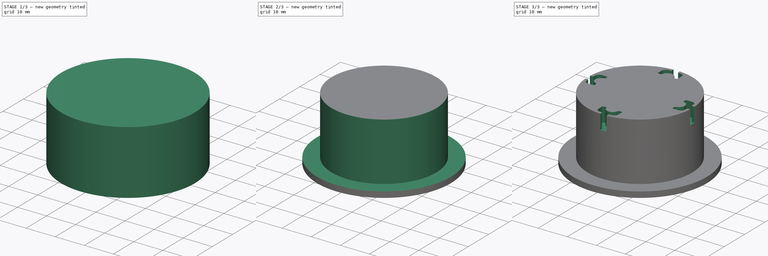
[diagram: build sequence overview — one tinted view per stage of 3, left to right]
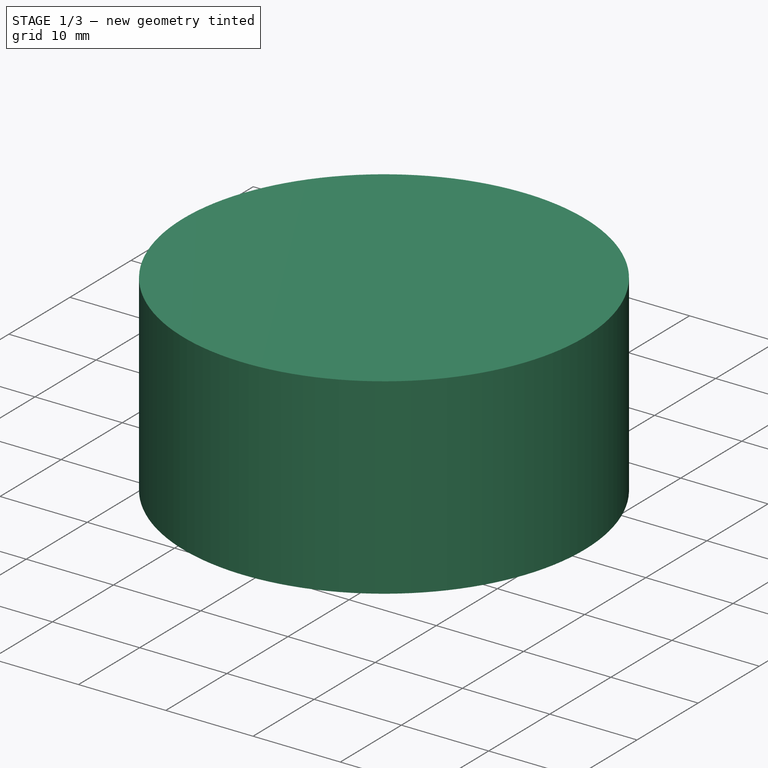
[diagram: stage 1 of 3 — iso view after this stage's code; geometry added in this stage tinted green]
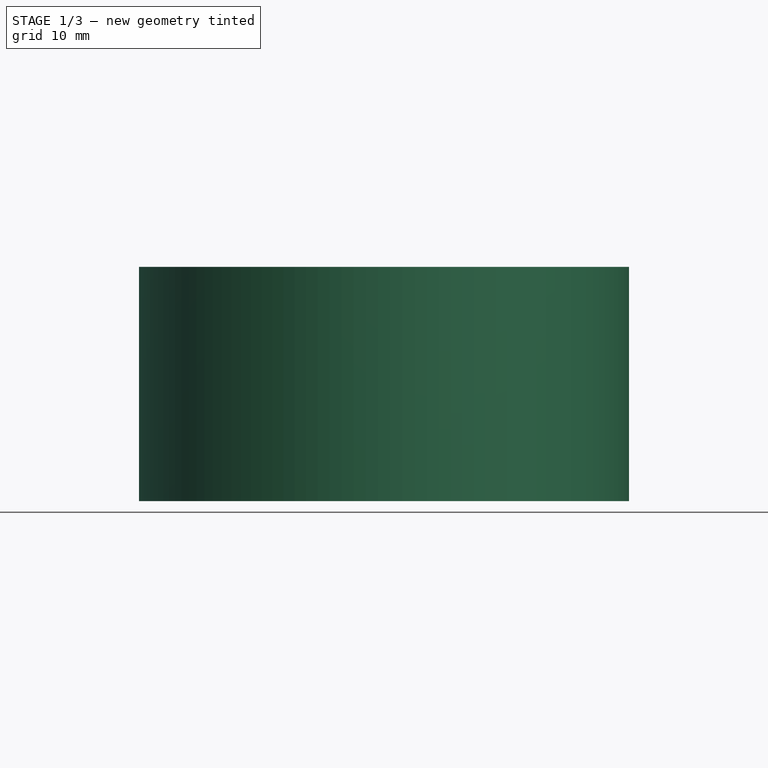
[diagram: stage 1 of 3 — front view after this stage's code; geometry added in this stage tinted green]
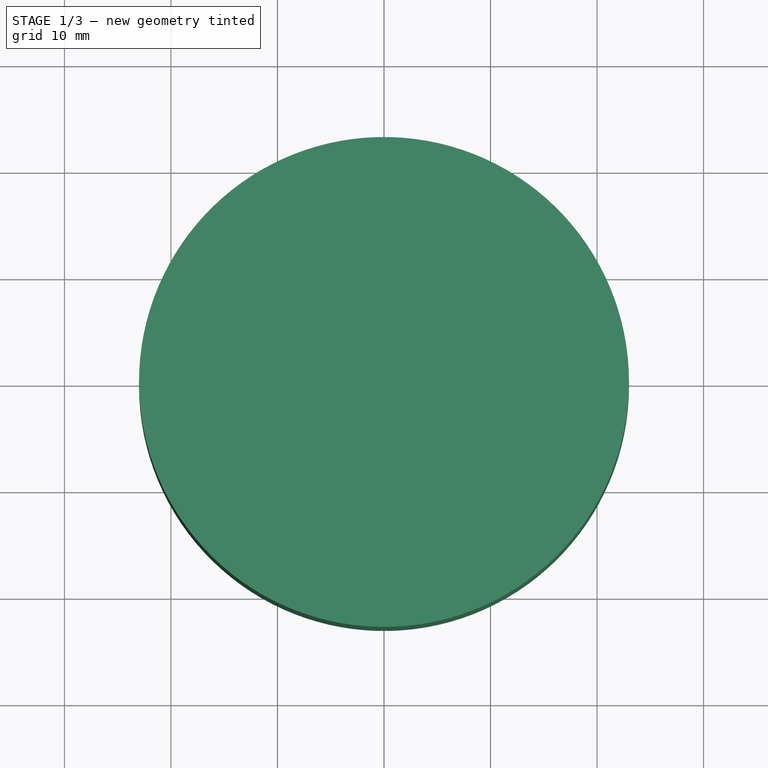
[diagram: stage 1 of 3 — top view after this stage's code; geometry added in this stage tinted green]
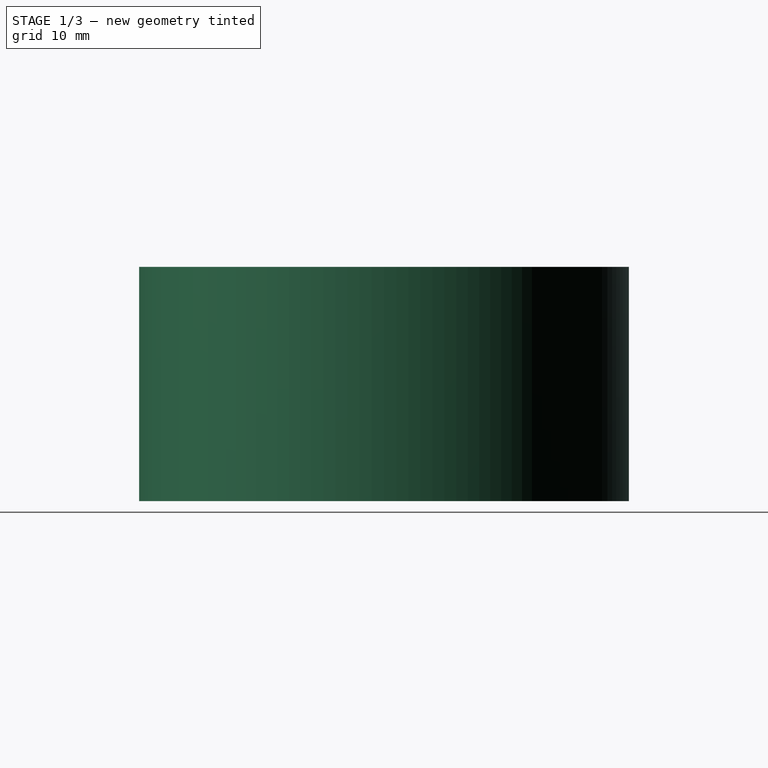
[diagram: stage 1 of 3 — right view after this stage's code; geometry added in this stage tinted green]
FCSTD DOCUMENT  (FreeCAD 1.0R39109 (Git))
Label: Soporte
License: All rights reserved
LicenseURL: http://en.wikipedia.org/wiki/All_rights_reserved
objects: Sketcher::SketchObject×4, PartDesign::Pocket×4, PartDesign::Pad×1, PartDesign::Body×1
note: 24 computed .brp shape members not serialized (recipe doc carries the construction recipe); baked Part::Feature solids carry a one-line shape summary decoded from their .brp

FEATURE [Sketcher::SketchObject] Sketch
  ArcFitTolerance = 1e-06
  AttachmentSupport = -> [XY_Plane]
  FullyConstrained = true
  MakeInternals = false
  MapMode = 5
  sketch-geometry (1):
    g0: Circle CenterX=0 CenterY=0 CenterZ=0 NormalX=0 NormalY=0 NormalZ=1 AngleXU=0 Radius=23
  constraints (2):
    c: Diameter(g0) = 46
    c: Coincident(g0,g-1)
FEATURE [PartDesign::Pad] Pad
  Direction = (0,0,1)
  Length = 22
  Length2 = 10
  Profile = -> Sketch
  ReferenceAxis = -> Sketch [N_Axis]
  Suppressed = false
  Type = 0
FEATURE [Sketcher::SketchObject] Sketch003
  ArcFitTolerance = 1e-06
  FullyConstrained = true
  MakeInternals = false
  MapMode = 5
  Placement = pos=(0,0,0) rot=(1,0,0;3.14159rad)
  sketch-geometry (1):
    g0: Circle CenterX=0 CenterY=0 CenterZ=0 NormalX=0 NormalY=0 NormalZ=1 AngleXU=0 Radius=11.5
  constraints (2):
    c: Diameter(g0) = 23
    c: Coincident(g0,g-1)
FEATURE [PartDesign::Pocket] Pocket001
  BaseFeature = -> Pad
  Direction = (0,0,1)
  Length = 21
  Length2 = 5
  Profile = -> Sketch003
  ReferenceAxis = -> Sketch003 [N_Axis]
  Suppressed = false
  Type = 0
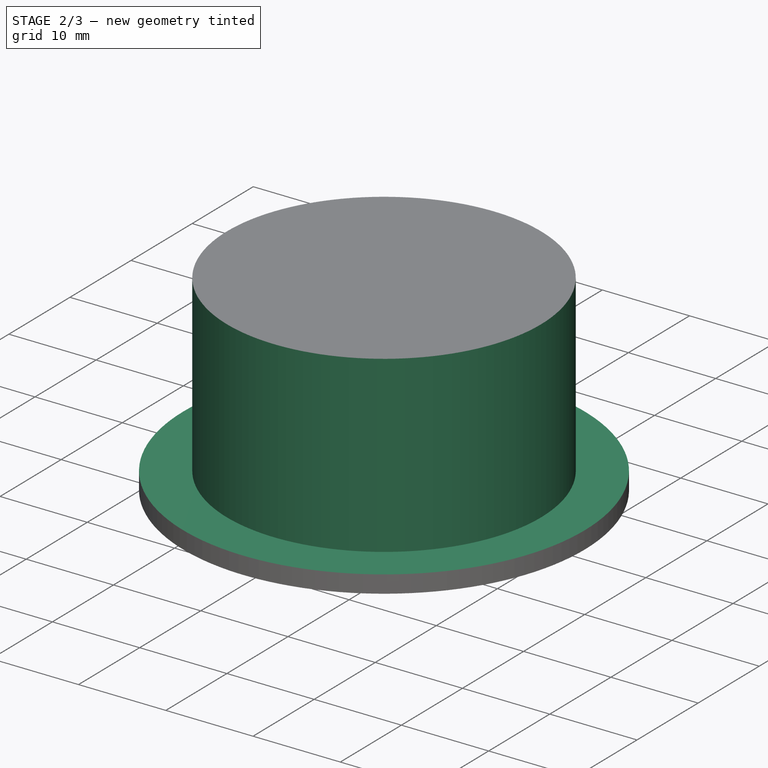
[diagram: stage 2 of 3 — iso view after this stage's code; geometry added in this stage tinted green]
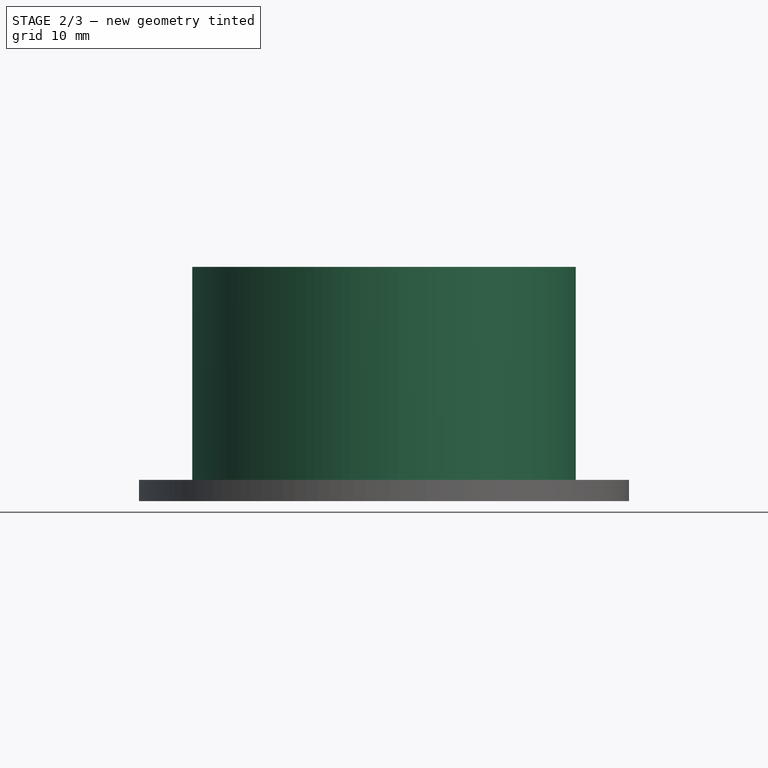
[diagram: stage 2 of 3 — front view after this stage's code; geometry added in this stage tinted green]
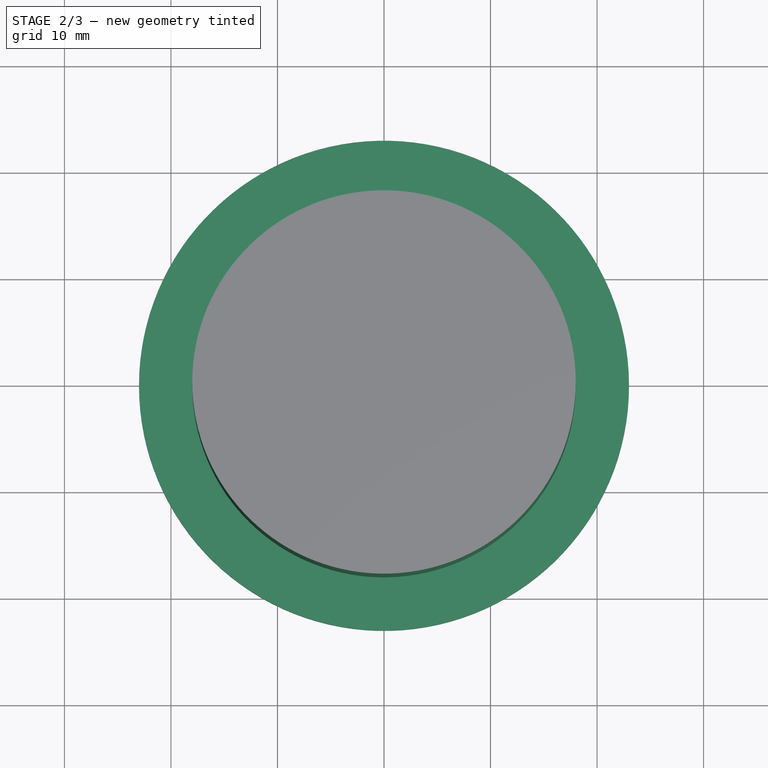
[diagram: stage 2 of 3 — top view after this stage's code; geometry added in this stage tinted green]
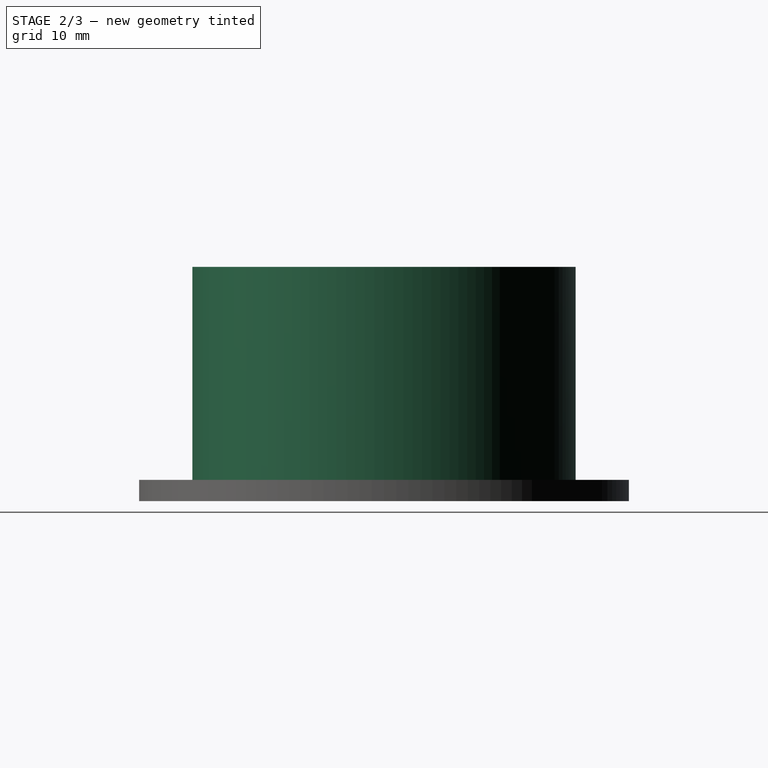
[diagram: stage 2 of 3 — right view after this stage's code; geometry added in this stage tinted green]
FEATURE [Sketcher::SketchObject] Sketch004
  ArcFitTolerance = 1e-06
  AttachmentSupport = -> [Pocket001]
  ExternalGeometry = -> [Pocket001]
  FullyConstrained = false
  MakeInternals = false
  MapMode = 5
  Placement = pos=(0,0,22) rot=(0,0,1;0rad)
  sketch-geometry (3):
    g0: Circle CenterX=0 CenterY=0 CenterZ=0 NormalX=0 NormalY=0 NormalZ=1 AngleXU=0 Radius=23
    g1: LineSegment [constr] StartX=0 StartY=0 StartZ=0 EndX=0 EndY=18 EndZ=0
    g2: Circle CenterX=0 CenterY=0 CenterZ=0 NormalX=0 NormalY=0 NormalZ=1 AngleXU=0 Radius=18
  constraints (6):
    c: Coincident(g0,g-1)
    c: Distance(g1) = 18
    c: Coincident(g1,g0)
    c: PointOnObject(g1,g-2)
    c: Coincident(g2,g0)
    c: PointOnObject(g1,g2)
FEATURE [PartDesign::Pocket] Pocket
  BaseFeature = -> Pocket001
  Direction = (0,0,-1)
  Length = 20
  Length2 = 5
  Profile = -> Sketch004
  ReferenceAxis = -> Sketch004 [N_Axis]
  Suppressed = false
  Type = 0
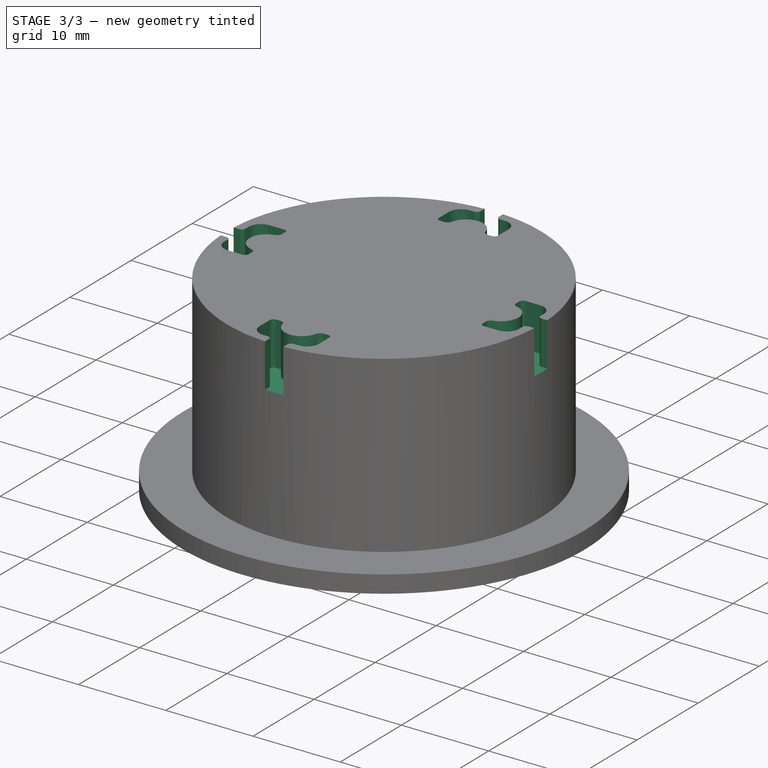
[diagram: stage 3 of 3 — iso view after this stage's code; geometry added in this stage tinted green]
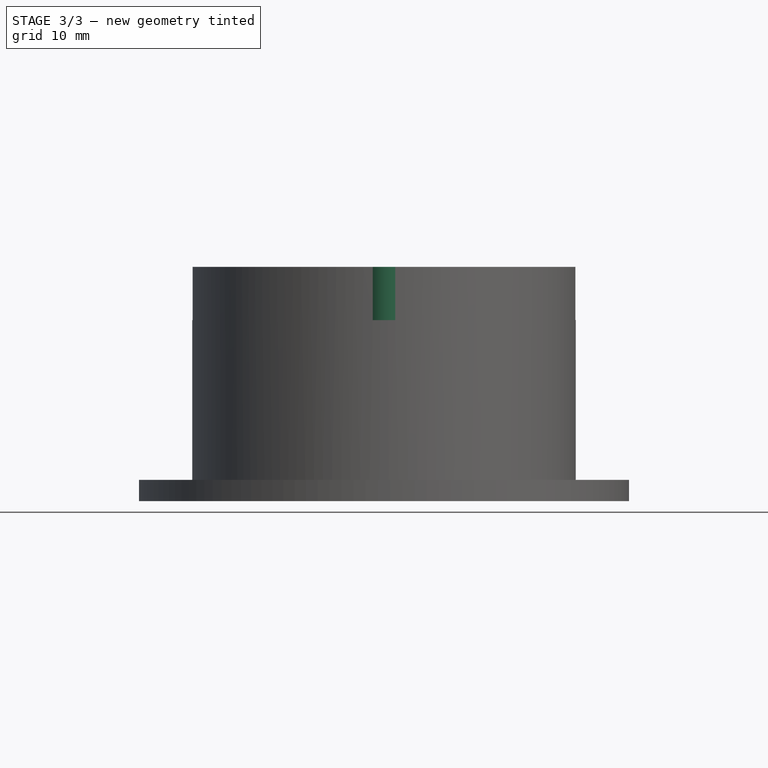
[diagram: stage 3 of 3 — front view after this stage's code; geometry added in this stage tinted green]
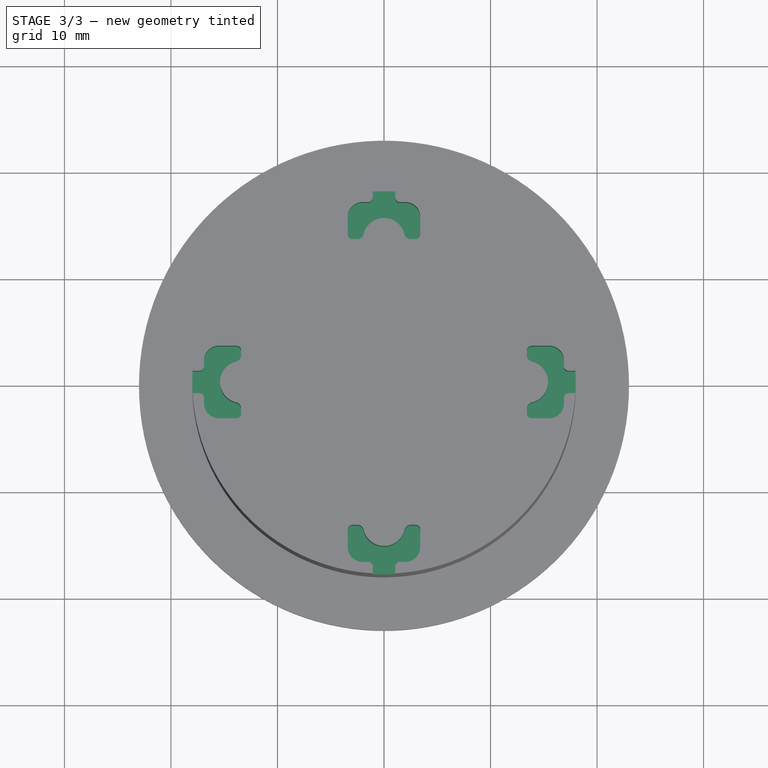
[diagram: stage 3 of 3 — top view after this stage's code; geometry added in this stage tinted green]
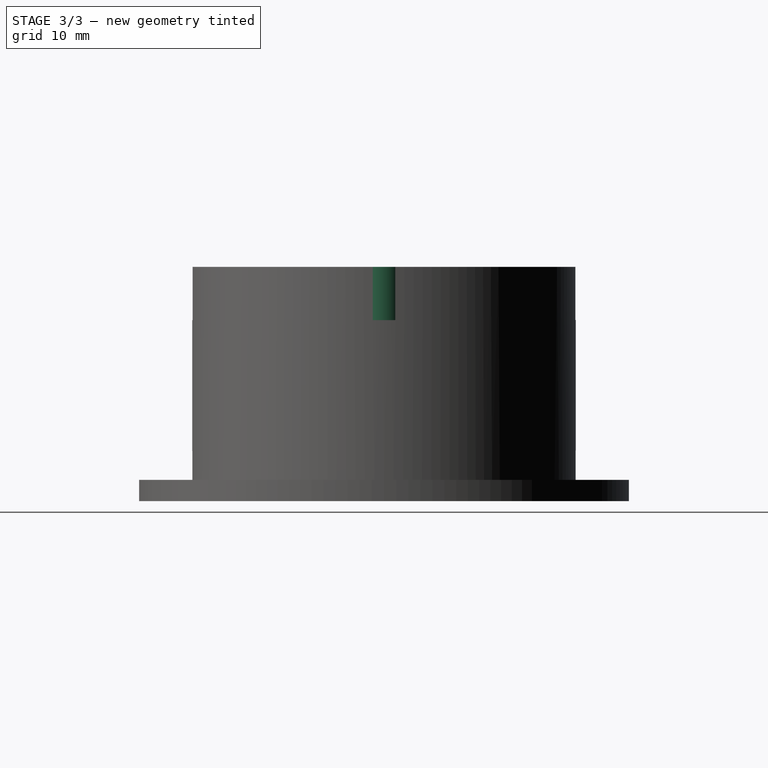
[diagram: stage 3 of 3 — right view after this stage's code; geometry added in this stage tinted green]
FEATURE [Sketcher::SketchObject] Sketch005
  ArcFitTolerance = 1e-06
  AttachmentSupport = -> [Pocket]
  FullyConstrained = false
  MakeInternals = false
  MapMode = 5
  Placement = pos=(0,0,22) rot=(0,0,1;0rad)
  sketch-geometry (93):
    g0: Circle [constr] CenterX=0 CenterY=0 CenterZ=0 NormalX=0 NormalY=0 NormalZ=1 AngleXU=0 Radius=12.5968
    g1: LineSegment StartX=-1.05652 StartY=18.7424 StartZ=0 EndX=-1.05652 EndY=17.3219 EndZ=0
    g2: LineSegment StartX=-1.4862 StartY=16.8922 StartZ=0 EndX=-2.01169 EndY=16.8922 EndZ=0
    g3: LineSegment StartX=-3.4072 StartY=15.4967 StartZ=0 EndX=-3.4072 EndY=13.857 EndZ=0
    g4: LineSegment StartX=-2.4972 StartY=13.4096 StartZ=0 EndX=-2.95974 EndY=13.4096 EndZ=0
    g5: ArcOfCircle CenterX=-2.01169 CenterY=15.4967 CenterZ=0 NormalX=0 NormalY=0 NormalZ=1 AngleXU=0 Radius=1.39551 StartAngle=1.5708 EndAngle=3.14159
    g6: GeomPoint [constr] X=-3.4072 Y=16.8922 Z=0
    g7: LineSegment StartX=-1.05652 StartY=18.7424 StartZ=0 EndX=0 EndY=18.7424 EndZ=0
    g8: ArcOfCircle CenterX=-2.49718 CenterY=14.004 CenterZ=0 NormalX=0 NormalY=0 NormalZ=1 AngleXU=0 Radius=0.594447 StartAngle=4.71237 EndAngle=6.04953
    g9: ArcOfCircle CenterX=-2.95973 CenterY=13.857 CenterZ=0 NormalX=0 NormalY=0 NormalZ=1 AngleXU=0 Radius=0.447476 StartAngle=3.14159 EndAngle=4.71237
    g10: GeomPoint [constr] X=-3.4072 Y=13.4096 Z=0
    g11: ArcOfCircle CenterX=-1.4862 CenterY=17.3219 CenterZ=0 NormalX=0 NormalY=0 NormalZ=1 AngleXU=0 Radius=0.429673 StartAngle=4.71239 EndAngle=6.28319
    g12: LineSegment StartX=1.05652 StartY=18.7424 StartZ=0 EndX=1.05652 EndY=17.3219 EndZ=0
    g13: LineSegment StartX=1.4862 StartY=16.8922 StartZ=0 EndX=2.01169 EndY=16.8922 EndZ=0
    g14: LineSegment StartX=3.4072 StartY=15.4967 StartZ=0 EndX=3.4072 EndY=13.857 EndZ=0
    g15: LineSegment StartX=2.4972 StartY=13.4096 StartZ=0 EndX=2.95974 EndY=13.4096 EndZ=0
    g16: ArcOfCircle CenterX=2.01169 CenterY=15.4967 CenterZ=0 NormalX=0 NormalY=0 NormalZ=1 AngleXU=0 Radius=1.39551 StartAngle=0 EndAngle=1.5708
    g17: GeomPoint [constr] X=3.4072 Y=16.8922 Z=0
    g18: LineSegment StartX=1.05652 StartY=18.7424 StartZ=0 EndX=0 EndY=18.7424 EndZ=0
    g19: ArcOfCircle CenterX=2.49718 CenterY=14.004 CenterZ=0 NormalX=0 NormalY=0 NormalZ=1 AngleXU=0 Radius=0.594447 StartAngle=3.37525 EndAngle=4.71241
    g20: ArcOfCircle CenterX=2.95973 CenterY=13.857 CenterZ=0 NormalX=0 NormalY=0 NormalZ=1 AngleXU=0 Radius=0.447476 StartAngle=4.71241 EndAngle=6.28319
    g21: GeomPoint [constr] X=3.4072 Y=13.4096 Z=0
    g22: ArcOfCircle CenterX=1.4862 CenterY=17.3219 CenterZ=0 NormalX=0 NormalY=0 NormalZ=1 AngleXU=0 Radius=0.429673 StartAngle=3.14159 EndAngle=4.71239
    g23: ArcOfCircle CenterX=1.4763e-07 CenterY=13.4288 CenterZ=0 NormalX=0 NormalY=0 NormalZ=1 AngleXU=0 Radius=1.96814 StartAngle=0.224186 EndAngle=2.91741
    g24: LineSegment StartX=18.7424 StartY=1.05652 StartZ=0 EndX=17.3219 EndY=1.05652 EndZ=0
    g25: LineSegment StartX=16.8922 StartY=1.4862 StartZ=0 EndX=16.8922 EndY=2.01169 EndZ=0
    g26: LineSegment StartX=15.4967 StartY=3.4072 StartZ=0 EndX=13.857 EndY=3.4072 EndZ=0
    g27: LineSegment StartX=13.4096 StartY=2.4972 StartZ=0 EndX=13.4096 EndY=2.95974 EndZ=0
    g28: ArcOfCircle CenterX=15.4967 CenterY=2.01169 CenterZ=0 NormalX=0 NormalY=0 NormalZ=1 AngleXU=0 Radius=1.39551 StartAngle=5.38e-14 EndAngle=1.5708
    g29: GeomPoint [constr] X=16.8922 Y=3.4072 Z=0
    g30: LineSegment StartX=18.7424 StartY=1.05652 StartZ=0 EndX=18.7424 EndY=0 EndZ=0
    g31: ArcOfCircle CenterX=14.004 CenterY=2.49718 CenterZ=0 NormalX=0 NormalY=0 NormalZ=1 AngleXU=0 Radius=0.594447 StartAngle=3.14157 EndAngle=4.47874
    g32: ArcOfCircle CenterX=13.857 CenterY=2.95973 CenterZ=0 NormalX=0 NormalY=0 NormalZ=1 AngleXU=0 Radius=0.447476 StartAngle=1.5708 EndAngle=3.14157
    g33: GeomPoint [constr] X=13.4096 Y=3.4072 Z=0
    g34: ArcOfCircle CenterX=17.3219 CenterY=1.4862 CenterZ=0 NormalX=0 NormalY=0 NormalZ=1 AngleXU=0 Radius=0.429673 StartAngle=3.14159 EndAngle=4.71239
    g35: LineSegment StartX=18.7424 StartY=-1.05652 StartZ=0 EndX=17.3219 EndY=-1.05652 EndZ=0
    g36: LineSegment StartX=16.8922 StartY=-1.4862 StartZ=0 EndX=16.8922 EndY=-2.01169 EndZ=0
    g37: LineSegment StartX=15.4967 StartY=-3.4072 StartZ=0 EndX=13.857 EndY=-3.4072 EndZ=0
    g38: LineSegment StartX=13.4096 StartY=-2.4972 StartZ=0 EndX=13.4096 EndY=-2.95974 EndZ=0
    g39: ArcOfCircle CenterX=15.4967 CenterY=-2.01169 CenterZ=0 NormalX=0 NormalY=0 NormalZ=1 AngleXU=0 Radius=1.39551 StartAngle=4.71239 EndAngle=6.28319
    g40: GeomPoint [constr] X=16.8922 Y=-3.4072 Z=0
    g41: LineSegment StartX=18.7424 StartY=-1.05652 StartZ=0 EndX=18.7424 EndY=0 EndZ=0
    g42: ArcOfCircle CenterX=14.004 CenterY=-2.49718 CenterZ=0 NormalX=0 NormalY=0 NormalZ=1 AngleXU=0 Radius=0.594447 StartAngle=1.80445 EndAngle=3.14162
    g43: ArcOfCircle CenterX=13.857 CenterY=-2.95973 CenterZ=0 NormalX=0 NormalY=0 NormalZ=1 AngleXU=0 Radius=0.447476 StartAngle=3.14162 EndAngle=4.71239
    g44: GeomPoint [constr] X=13.4096 Y=-3.4072 Z=0
    g45: ArcOfCircle CenterX=17.3219 CenterY=-1.4862 CenterZ=0 NormalX=0 NormalY=0 NormalZ=1 AngleXU=0 Radius=0.429673 StartAngle=1.5708 EndAngle=3.14159
    g46: ArcOfCircle CenterX=13.4288 CenterY=6.3203e-08 CenterZ=0 NormalX=0 NormalY=0 NormalZ=1 AngleXU=0 Radius=1.96814 StartAngle=4.93657 EndAngle=7.6298
    g47: LineSegment StartX=1.05652 StartY=-18.7424 StartZ=0 EndX=1.05652 EndY=-17.3219 EndZ=0
    g48: LineSegment StartX=1.4862 StartY=-16.8922 StartZ=0 EndX=2.01169 EndY=-16.8922 EndZ=0
    g49: LineSegment StartX=3.4072 StartY=-15.4967 StartZ=0 EndX=3.4072 EndY=-13.857 EndZ=0
    g50: LineSegment StartX=2.4972 StartY=-13.4096 StartZ=0 EndX=2.95974 EndY=-13.4096 EndZ=0
    g51: ArcOfCircle CenterX=2.01169 CenterY=-15.4967 CenterZ=0 NormalX=0 NormalY=0 NormalZ=1 AngleXU=0 Radius=1.39551 StartAngle=4.71239 EndAngle=6.28319
    g52: GeomPoint [constr] X=3.4072 Y=-16.8922 Z=0
    g53: LineSegment StartX=1.05652 StartY=-18.7424 StartZ=0 EndX=0 EndY=-18.7424 EndZ=0
    g54: ArcOfCircle CenterX=2.49718 CenterY=-14.004 CenterZ=0 NormalX=0 NormalY=0 NormalZ=1 AngleXU=0 Radius=0.594447 StartAngle=1.57077 EndAngle=2.90794
    g55: ArcOfCircle CenterX=2.95973 CenterY=-13.857 CenterZ=0 NormalX=0 NormalY=0 NormalZ=1 AngleXU=0 Radius=0.447476 StartAngle=0 EndAngle=1.57077
    g56: GeomPoint [constr] X=3.4072 Y=-13.4096 Z=0
    g57: ArcOfCircle CenterX=1.4862 CenterY=-17.3219 CenterZ=0 NormalX=0 NormalY=0 NormalZ=1 AngleXU=0 Radius=0.429673 StartAngle=1.5708 EndAngle=3.14159
    g58: LineSegment StartX=-1.05652 StartY=-18.7424 StartZ=0 EndX=-1.05652 EndY=-17.3219 EndZ=0
    g59: LineSegment StartX=-1.4862 StartY=-16.8922 StartZ=0 EndX=-2.01169 EndY=-16.8922 EndZ=0
    g60: LineSegment StartX=-3.4072 StartY=-15.4967 StartZ=0 EndX=-3.4072 EndY=-13.857 EndZ=0
    g61: LineSegment StartX=-2.4972 StartY=-13.4096 StartZ=0 EndX=-2.95974 EndY=-13.4096 EndZ=0
    g62: ArcOfCircle CenterX=-2.01169 CenterY=-15.4967 CenterZ=0 NormalX=0 NormalY=0 NormalZ=1 AngleXU=0 Radius=1.39551 StartAngle=3.14159 EndAngle=4.71239
    g63: GeomPoint [constr] X=-3.4072 Y=-16.8922 Z=0
    g64: LineSegment StartX=-1.05652 StartY=-18.7424 StartZ=0 EndX=0 EndY=-18.7424 EndZ=0
    g65: ArcOfCircle CenterX=-2.49718 CenterY=-14.004 CenterZ=0 NormalX=0 NormalY=0 NormalZ=1 AngleXU=0 Radius=0.594447 StartAngle=0.233654 EndAngle=1.57082
    g66: ArcOfCircle CenterX=-2.95973 CenterY=-13.857 CenterZ=0 NormalX=0 NormalY=0 NormalZ=1 AngleXU=0 Radius=0.447476 StartAngle=1.57082 EndAngle=3.14159
    g67: GeomPoint [constr] X=-3.4072 Y=-13.4096 Z=0
    g68: ArcOfCircle CenterX=-1.4862 CenterY=-17.3219 CenterZ=0 NormalX=0 NormalY=0 NormalZ=1 AngleXU=0 Radius=0.429673 StartAngle=0 EndAngle=1.5708
    g69: ArcOfCircle CenterX=3.46409e-08 CenterY=-13.4288 CenterZ=0 NormalX=0 NormalY=0 NormalZ=1 AngleXU=0 Radius=1.96814 StartAngle=3.36578 EndAngle=6.059
    g70: LineSegment StartX=-18.7424 StartY=-1.05652 StartZ=0 EndX=-17.3219 EndY=-1.05652 EndZ=0
    g71: LineSegment StartX=-16.8922 StartY=-1.4862 StartZ=0 EndX=-16.8922 EndY=-2.01169 EndZ=0
    g72: LineSegment StartX=-15.4967 StartY=-3.4072 StartZ=0 EndX=-13.857 EndY=-3.4072 EndZ=0
    g73: LineSegment StartX=-13.4096 StartY=-2.4972 StartZ=0 EndX=-13.4096 EndY=-2.95974 EndZ=0
    g74: ArcOfCircle CenterX=-15.4967 CenterY=-2.01169 CenterZ=0 NormalX=0 NormalY=0 NormalZ=1 AngleXU=0 Radius=1.39551 StartAngle=3.14159 EndAngle=4.71239
    g75: GeomPoint [constr] X=-16.8922 Y=-3.4072 Z=0
    g76: LineSegment StartX=-18.7424 StartY=-1.05652 StartZ=0 EndX=-18.7424 EndY=0 EndZ=0
    g77: ArcOfCircle CenterX=-14.004 CenterY=-2.49718 CenterZ=0 NormalX=0 NormalY=0 NormalZ=1 AngleXU=0 Radius=0.594447 StartAngle=6.28316 EndAngle=7.62033
    g78: ArcOfCircle CenterX=-13.857 CenterY=-2.95973 CenterZ=0 NormalX=0 NormalY=0 NormalZ=1 AngleXU=0 Radius=0.447476 StartAngle=4.71239 EndAngle=6.28316
    g79: GeomPoint [constr] X=-13.4096 Y=-3.4072 Z=0
    g80: ArcOfCircle CenterX=-17.3219 CenterY=-1.4862 CenterZ=0 NormalX=0 NormalY=0 NormalZ=1 AngleXU=0 Radius=0.429673 StartAngle=0 EndAngle=1.5708
    g81: LineSegment StartX=-18.7424 StartY=1.05652 StartZ=0 EndX=-17.3219 EndY=1.05652 EndZ=0
    g82: LineSegment StartX=-16.8922 StartY=1.4862 StartZ=0 EndX=-16.8922 EndY=2.01169 EndZ=0
    g83: LineSegment StartX=-15.4967 StartY=3.4072 StartZ=0 EndX=-13.857 EndY=3.4072 EndZ=0
    g84: LineSegment StartX=-13.4096 StartY=2.4972 StartZ=0 EndX=-13.4096 EndY=2.95974 EndZ=0
    g85: ArcOfCircle CenterX=-15.4967 CenterY=2.01169 CenterZ=0 NormalX=0 NormalY=0 NormalZ=1 AngleXU=0 Radius=1.39551 StartAngle=1.5708 EndAngle=3.14159
    g86: GeomPoint [constr] X=-16.8922 Y=3.4072 Z=0
    g87: LineSegment StartX=-18.7424 StartY=1.05652 StartZ=0 EndX=-18.7424 EndY=0 EndZ=0
    g88: ArcOfCircle CenterX=-14.004 CenterY=2.49718 CenterZ=0 NormalX=0 NormalY=0 NormalZ=1 AngleXU=0 Radius=0.594447 StartAngle=4.94604 EndAngle=6.28321
    g89: ArcOfCircle CenterX=-13.857 CenterY=2.95973 CenterZ=0 NormalX=0 NormalY=0 NormalZ=1 AngleXU=0 Radius=0.447476 StartAngle=2.32673e-05 EndAngle=1.5708
    g90: GeomPoint [constr] X=-13.4096 Y=3.4072 Z=0
    g91: ArcOfCircle CenterX=-17.3219 CenterY=1.4862 CenterZ=0 NormalX=0 NormalY=0 NormalZ=1 AngleXU=0 Radius=0.429673 StartAngle=4.71239 EndAngle=6.28319
    g92: ArcOfCircle CenterX=-13.4288 CenterY=-1.24269e-09 CenterZ=0 NormalX=0 NormalY=0 NormalZ=1 AngleXU=0 Radius=1.96814 StartAngle=1.79498 EndAngle=4.4882
  constraints (112):
    c: Coincident(g0,g-1)
    c: Vertical(g1)
    c: Vertical(g3)
    c: PointOnObject(g6,g2)
    c: PointOnObject(g6,g3)
    c: Tangent(g2,g5) = -1.5708
    c: Tangent(g3,g5) = -1.5708
    c: Horizontal(g7)
    c: Coincident(g7,g1)
    c: PointOnObject(g7,g-2)
    c: Tangent(g4,g8) = 1.5708
    c: PointOnObject(g10,g3)
    c: PointOnObject(g10,g4)
    c: Tangent(g3,g9) = -1.5708
    c: Tangent(g4,g9) = 1.5708
    c: Tangent(g1,g11) = 1.5708
    c: Tangent(g2,g11) = 1.5708
    c: Vertical(g12)
    c: Vertical(g14)
    c: PointOnObject(g17,g13)
    c: PointOnObject(g17,g14)
    c: Tangent(g13,g16) = 1.5708
    c: Tangent(g14,g16) = 1.5708
    c: Horizontal(g18)
    c: Coincident(g18,g12)
    c: Tangent(g15,g19) = -1.5708
    c: PointOnObject(g21,g14)
    c: PointOnObject(g21,g15)
    c: Tangent(g14,g20) = 1.5708
    c: Tangent(g15,g20) = -1.5708
    c: Tangent(g12,g22) = -1.5708
    c: Tangent(g13,g22) = -1.5708
    c: Coincident(g23,g8)
    c: Coincident(g23,g19)
    c: PointOnObject(g29,g25)
    c: PointOnObject(g52,g48)
    c: PointOnObject(g75,g71)
    c: PointOnObject(g29,g26)
    c: PointOnObject(g52,g49)
    c: PointOnObject(g75,g72)
    c: Tangent(g25,g28) = -1.5708
    c: Tangent(g48,g51) = -1.5708
    c: Tangent(g71,g74) = -1.5708
    c: Tangent(g26,g28) = -1.5708
    c: Tangent(g49,g51) = -1.5708
    c: Tangent(g72,g74) = -1.5708
    c: Coincident(g30,g24)
    c: Coincident(g53,g47)
    c: Coincident(g76,g70)
    c: Tangent(g27,g31) = 1.5708
    c: Tangent(g50,g54) = 1.5708
    c: Tangent(g73,g77) = 1.5708
    c: PointOnObject(g33,g26)
    c: PointOnObject(g56,g49)
    c: PointOnObject(g79,g72)
    c: PointOnObject(g33,g27)
    c: PointOnObject(g56,g50)
    c: PointOnObject(g79,g73)
    c: Tangent(g26,g32) = -1.5708
    c: Tangent(g49,g55) = -1.5708
    c: Tangent(g72,g78) = -1.5708
    c: Tangent(g27,g32) = 1.5708
    c: Tangent(g50,g55) = 1.5708
    c: Tangent(g73,g78) = 1.5708
    c: Tangent(g24,g34) = 1.5708
    c: Tangent(g47,g57) = 1.5708
    c: Tangent(g70,g80) = 1.5708
    c: Tangent(g25,g34) = 1.5708
    c: Tangent(g48,g57) = 1.5708
    c: Tangent(g71,g80) = 1.5708
    c: PointOnObject(g40,g36)
    c: PointOnObject(g63,g59)
    c: PointOnObject(g86,g82)
    c: PointOnObject(g40,g37)
    c: PointOnObject(g63,g60)
    c: PointOnObject(g86,g83)
    c: Tangent(g36,g39) = 1.5708
    c: Tangent(g59,g62) = 1.5708
    c: Tangent(g82,g85) = 1.5708
    c: Tangent(g37,g39) = 1.5708
    c: Tangent(g60,g62) = 1.5708
    c: Tangent(g83,g85) = 1.5708
    c: Coincident(g41,g35)
    c: Coincident(g64,g58)
    c: Coincident(g87,g81)
    c: Tangent(g38,g42) = -1.5708
    c: Tangent(g61,g65) = -1.5708
    c: Tangent(g84,g88) = -1.5708
    c: PointOnObject(g44,g37)
    c: PointOnObject(g67,g60)
    c: PointOnObject(g90,g83)
    c: PointOnObject(g44,g38)
    c: PointOnObject(g67,g61)
    c: PointOnObject(g90,g84)
    c: Tangent(g37,g43) = 1.5708
    c: Tangent(g60,g66) = 1.5708
    c: Tangent(g83,g89) = 1.5708
    c: Tangent(g38,g43) = -1.5708
    c: Tangent(g61,g66) = -1.5708
    c: Tangent(g84,g89) = -1.5708
    c: Tangent(g35,g45) = -1.5708
    c: Tangent(g58,g68) = -1.5708
    c: Tangent(g81,g91) = -1.5708
    c: Tangent(g36,g45) = -1.5708
    c: Tangent(g59,g68) = -1.5708
    c: Tangent(g82,g91) = -1.5708
    c: Coincident(g46,g31)
    c: Coincident(g69,g54)
    c: Coincident(g92,g77)
    c: Coincident(g46,g42)
    c: Coincident(g69,g65)
    c: Coincident(g92,g88)
FEATURE [PartDesign::Pocket] Pocket002
  BaseFeature = -> Pocket
  Direction = (0,0,-1)
  Length = 5
  Length2 = 5
  Offset = -3
  Profile = -> Sketch005
  ReferenceAxis = -> Sketch005 [N_Axis]
  Suppressed = false
  Type = 2
FEATURE [PartDesign::Pocket] Pocket003
  BaseFeature = -> Pocket002
  Direction = (0,0,-1)
  Length = 5
  Length2 = 5
  Profile = -> Sketch005
  ReferenceAxis = -> Sketch005 [N_Axis]
  Suppressed = false
  Type = 0
FEATURE [PartDesign::Body] Body
  AllowCompound = false
  Group = -> [Sketch,Pad,Sketch003,Pocket001,Sketch004,Pocket,Sketch005,Pocket002,Pocket003]
  Origin = -> Origin
  Tip = -> Pocket003
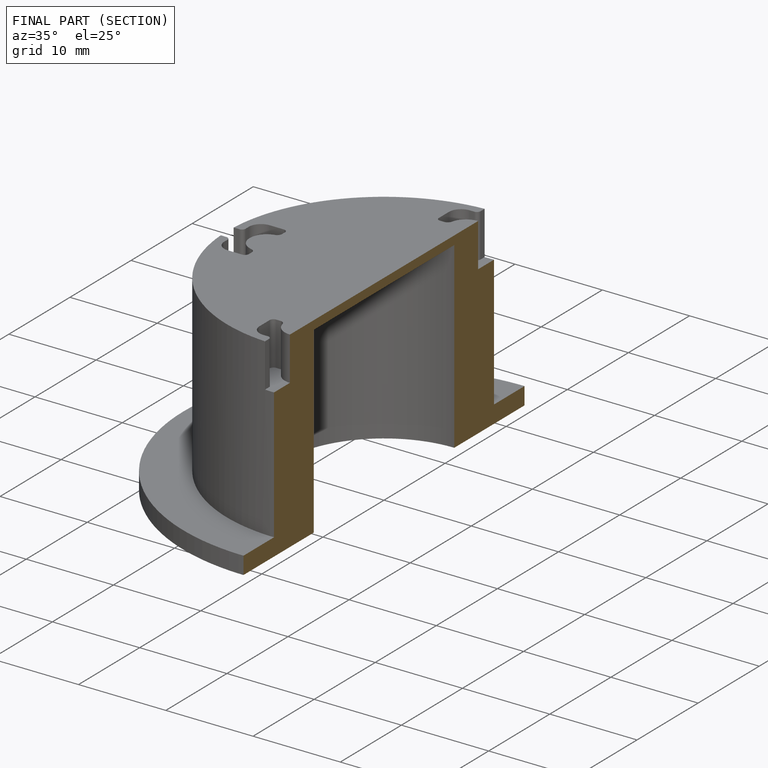
[diagram: finished part — half-section view (interior)]
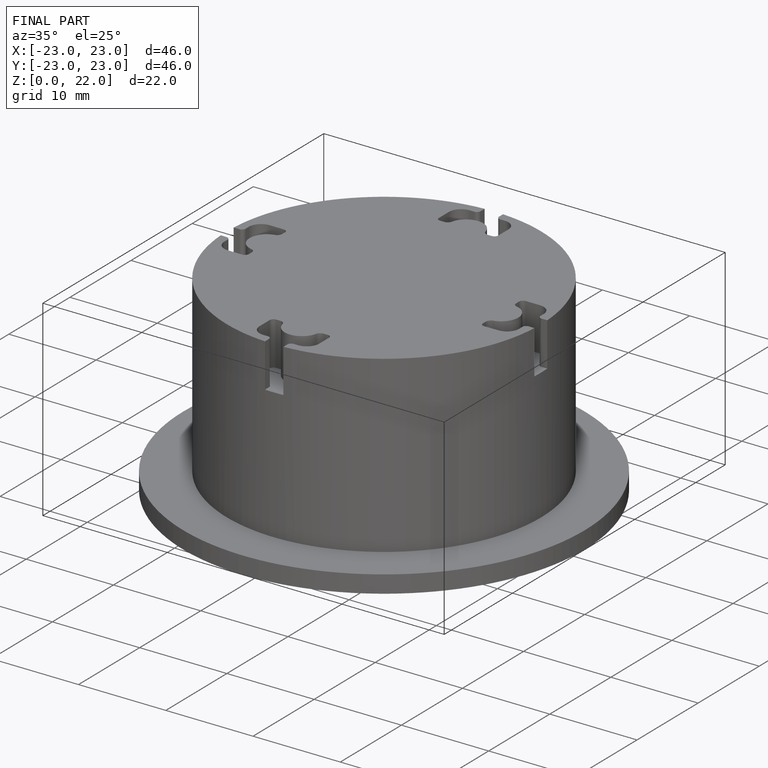
[diagram: finished part — iso view with bounding-box wireframe]
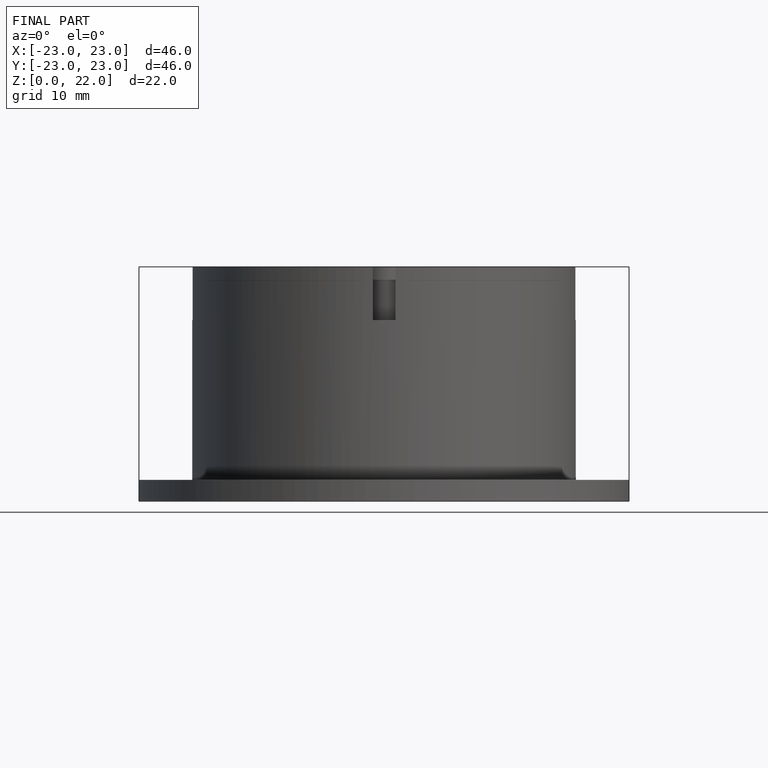
[diagram: finished part — front view with bounding-box wireframe]
